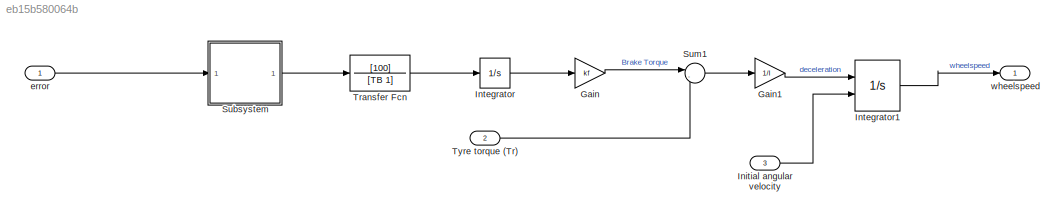
MODEL slx_eb15b580064b
KIND model
CONFIG AbsTol = auto
CONFIG EnableMultiTasking = off
CONFIG FixedStep = auto
CONFIG MaxStep = auto
CONFIG MinStep = auto
CONFIG PreLoadFcn = abs_data;
CONFIG RelTol = 1e-3
CONFIG SampleTimeConstraint = Unconstrained
CONFIG SolverName = VariableStepAuto
CONFIG StartTime = 0.0
CONFIG StopTime = 10.0
WORKSPACE source: mxarray member
WORKSPACE I = 5
WORKSPACE TB = 0.01
WORKSPACE kf = 1
BLOCK [Gain] Gain
  Gain = kf
BLOCK [Gain] Gain1
  Gain = 1/I
BLOCK [Inport] Initial angular velocity
  Port = 3
BLOCK [Integrator] Integrator
  LimitOutput = on
  LowerSaturationLimit = 0
  Ports = [1, 1]
  UpperSaturationLimit = 1000
BLOCK [Integrator] Integrator1
  InitialCondition = 88/Rr
  InitialConditionSource = external
  LimitOutput = on
  LowerSaturationLimit = 0
  Ports = [2, 1]
  UpperSaturationLimit = 1000
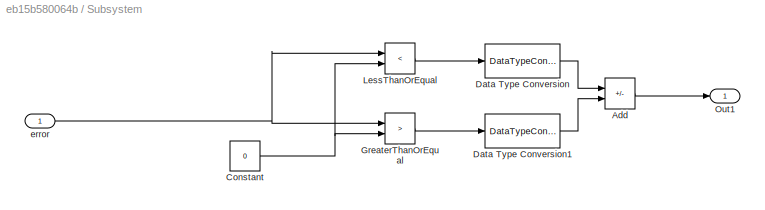
BLOCK [SubSystem] Subsystem
  Ports = [1, 1]
  RequestExecContextInheritance = off
BLOCK [Sum] Subsystem/Add
  IconShape = rectangular
  Inputs = -+
  Ports = [2, 1]
BLOCK [Constant] Subsystem/Constant
  Value = 0
BLOCK [DataTypeConversion] Subsystem/Data Type Conversion
  OutDataTypeStr = double
  RndMeth = Floor
  SaturateOnIntegerOverflow = off
BLOCK [DataTypeConversion] Subsystem/Data Type Conversion1
  OutDataTypeStr = double
  RndMeth = Floor
  SaturateOnIntegerOverflow = off
BLOCK [RelationalOperator] Subsystem/GreaterThanOrEqual
  InputSameDT = off
  Operator = >
  OutDataTypeStr = boolean
  Ports = [2, 1]
  RndMeth = Simplest
BLOCK [RelationalOperator] Subsystem/LessThanOrEqual
  InputSameDT = off
  Operator = <
  OutDataTypeStr = boolean
  Ports = [2, 1]
  RndMeth = Simplest
BLOCK [Outport] Subsystem/Out1
BLOCK [Inport] Subsystem/error
BLOCK [Sum] Sum1
  Inputs = |-+
  Ports = [2, 1]
BLOCK [TransferFcn] Transfer Fcn
  Denominator = [TB 1]
  Numerator = [100]
BLOCK [Inport] Tyre torque (Tr)
  OutDataTypeStr = double
  Port = 2
  PortDimensions = 1
  SampleTime = 0
  SamplingMode = Sample based
  SignalType = real
BLOCK [Inport] error
  OutDataTypeStr = double
  PortDimensions = 1
  SampleTime = 0
  SamplingMode = Sample based
  SignalType = real
BLOCK [Outport] wheelspeed
  OutDataTypeStr = double
  PortDimensions = 1
  SampleTime = 0
  SamplingMode = Sample based
  SignalType = real
LINE Gain1:1 -> Integrator1:1
LINE Gain:1 -> Sum1:1
LINE Initial angular velocity:1 -> Integrator1:2
LINE Integrator1:1 -> wheelspeed:1
LINE Integrator:1 -> Gain:1
LINE Subsystem/Add:1 -> Subsystem/Out1:1
NET Subsystem/Constant:1 -> Subsystem/GreaterThanOrEqual:2, Subsystem/LessThanOrEqual:2
LINE Subsystem/Data Type Conversion1:1 -> Subsystem/Add:2
LINE Subsystem/Data Type Conversion:1 -> Subsystem/Add:1
LINE Subsystem/GreaterThanOrEqual:1 -> Subsystem/Data Type Conversion1:1
LINE Subsystem/LessThanOrEqual:1 -> Subsystem/Data Type Conversion:1
NET Subsystem/error:1 -> Subsystem/GreaterThanOrEqual:1, Subsystem/LessThanOrEqual:1
LINE Subsystem:1 -> Transfer Fcn:1
LINE Sum1:1 -> Gain1:1
LINE Transfer Fcn:1 -> Integrator:1
LINE Tyre torque (Tr):1 -> Sum1:2
LINE error:1 -> Subsystem:1
note: NET lines group one-source signal fan-out (src -> all destinations, sorted); 1:1 wires keep LINE
